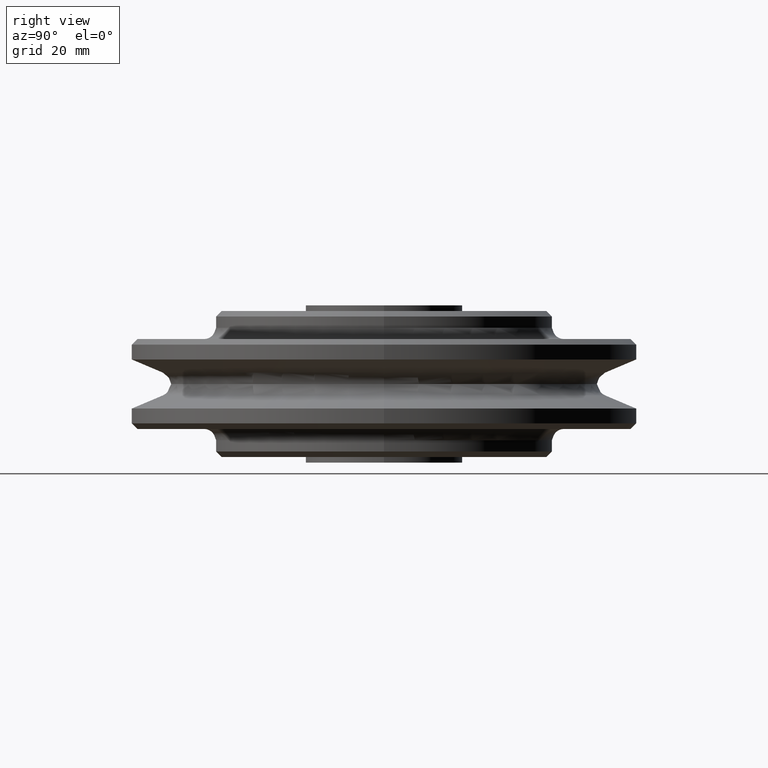
[diagram: clean part render]
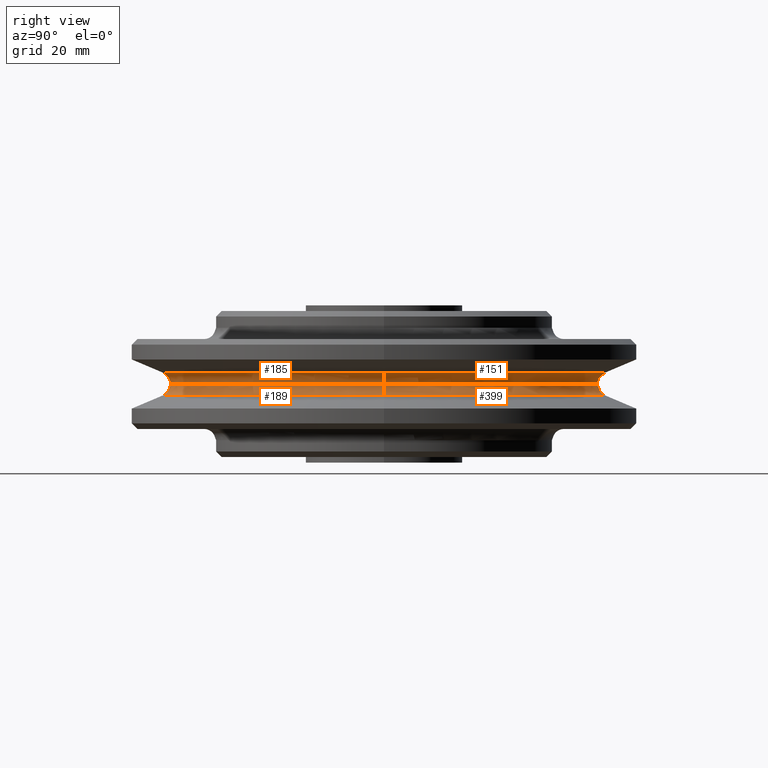
[diagram: same view with one multi-face feature highlighted, each face labeled with its STEP entity id]
A machine part, right view. The highlighted faces form ONE feature: a constant-radius fillet chain: 4 tangent blend faces with common blend radius 2.2 mm. The faces share edges in the B-rep.
Their STEP definitions:
[1] entity #189 (Torus):
#189=ADVANCED_FACE('',(#478),#479,.F.);
#478=FACE_OUTER_BOUND('',#888,.T.);
#479=TOROIDAL_SURFACE('',#889,40.2000003208,2.2000003208);
#888=EDGE_LOOP('',(#1387,#1388,#1389,#1390));
#889=AXIS2_PLACEMENT_3D('',#1391,#1392,#1393);
#1387=ORIENTED_EDGE('',*,*,#2649,.T.);
#1388=ORIENTED_EDGE('',*,*,#2656,.F.);
#1389=ORIENTED_EDGE('',*,*,#2657,.T.);
#1390=ORIENTED_EDGE('',*,*,#2658,.F.);
#1391=CARTESIAN_POINT('',(0.0,0.0,0.0));
#1392=DIRECTION('',(0.0,0.0,1.0));
#1393=DIRECTION('',(1.0,0.0,0.0));
#2649=EDGE_CURVE('',#3104,#3103,#3256,.T.);
#2656=EDGE_CURVE('',#3265,#3103,#3266,.T.);
#2657=EDGE_CURVE('',#3265,#3267,#3268,.T.);
#2658=EDGE_CURVE('',#3104,#3267,#3269,.T.);
#3103=VERTEX_POINT('',#3920);
#3104=VERTEX_POINT('',#3921);
#3256=CIRCLE('',#4905,38.0);
#3265=VERTEX_POINT('',#4916);
#3266=CIRCLE('',#4917,2.2000003208);
#3267=VERTEX_POINT('',#4918);
#3268=CIRCLE('',#4919,39.358096);
#3269=CIRCLE('',#4920,2.2000003208);
#3920=CARTESIAN_POINT('',(-38.0,3.96847459023068E-015,2.69422335099087E-016));
#3921=CARTESIAN_POINT('',(38.0,-3.96847459023068E-015,2.69422335099087E-016));
#4905=AXIS2_PLACEMENT_3D('',#8202,#8203,#8204);
#4916=CARTESIAN_POINT('',(-39.358096,4.81997662869342E-015,-2.032535));
#4917=AXIS2_PLACEMENT_3D('',#8213,#8214,#8215);
#4918=CARTESIAN_POINT('',(39.358096,0.0,-2.032535));
#4919=AXIS2_PLACEMENT_3D('',#8216,#8217,#8218);
#4920=AXIS2_PLACEMENT_3D('',#8219,#8220,#8221);
#8202=CARTESIAN_POINT('',(0.0,0.0,2.69422335099087E-016));
#8203=DIRECTION('',(-0.0,0.0,-1.0));
#8204=DIRECTION('',(-1.0,0.0,0.0));
#8213=CARTESIAN_POINT('',(-40.2000003208,4.92308017185903E-015,0.0));
#8214=DIRECTION('',(-1.22464679914735E-016,-1.0,0.0));
#8215=DIRECTION('',(-1.0,1.22464679914735E-016,-0.0));
#8216=CARTESIAN_POINT('',(0.0,0.0,-2.032535));
#8217=DIRECTION('',(0.0,0.0,1.0));
#8218=DIRECTION('',(1.0,0.0,0.0));
#8219=CARTESIAN_POINT('',(40.2000003208,-4.92308017185903E-015,0.0));
#8220=DIRECTION('',(-1.22464679914735E-016,-1.0,0.0));
#8221=DIRECTION('',(1.0,-1.22464679914735E-016,0.0));
[2] entity #185 (Torus):
#185=ADVANCED_FACE('',(#472),#473,.F.);
#472=FACE_OUTER_BOUND('',#882,.T.);
#473=TOROIDAL_SURFACE('',#883,40.2000003208,2.2000003208);
#882=EDGE_LOOP('',(#1371,#1372,#1373,#1374));
#883=AXIS2_PLACEMENT_3D('',#1375,#1376,#1377);
#1371=ORIENTED_EDGE('',*,*,#2649,.F.);
#1372=ORIENTED_EDGE('',*,*,#2567,.F.);
#1373=ORIENTED_EDGE('',*,*,#2650,.F.);
#1374=ORIENTED_EDGE('',*,*,#2565,.F.);
#1375=CARTESIAN_POINT('',(0.0,0.0,0.0));
#1376=DIRECTION('',(0.0,0.0,1.0));
#1377=DIRECTION('',(1.0,0.0,0.0));
#2565=EDGE_CURVE('',#3103,#3106,#3107,.T.);
#2567=EDGE_CURVE('',#3108,#3104,#3110,.T.);
#2649=EDGE_CURVE('',#3104,#3103,#3256,.T.);
#2650=EDGE_CURVE('',#3106,#3108,#3257,.T.);
#3103=VERTEX_POINT('',#3920);
#3104=VERTEX_POINT('',#3921);
#3106=VERTEX_POINT('',#3923);
#3107=CIRCLE('',#3924,2.2000003208);
#3108=VERTEX_POINT('',#3925);
#3110=CIRCLE('',#3927,2.2000003208);
#3256=CIRCLE('',#4905,38.0);
#3257=CIRCLE('',#4906,39.358096);
#3920=CARTESIAN_POINT('',(-38.0,3.96847459023068E-015,2.69422335099087E-016));
#3921=CARTESIAN_POINT('',(38.0,-3.96847459023068E-015,2.69422335099087E-016));
#3923=CARTESIAN_POINT('',(-39.358096,4.81997662869342E-015,2.032535));
#3924=AXIS2_PLACEMENT_3D('',#8097,#8098,#8099);
#3925=CARTESIAN_POINT('',(39.358096,0.0,2.032535));
#3927=AXIS2_PLACEMENT_3D('',#8103,#8104,#8105);
#4905=AXIS2_PLACEMENT_3D('',#8202,#8203,#8204);
#4906=AXIS2_PLACEMENT_3D('',#8205,#8206,#8207);
#8097=CARTESIAN_POINT('',(-40.2000003208,4.92308017185903E-015,0.0));
#8098=DIRECTION('',(-1.22464679914735E-016,-1.0,0.0));
#8099=DIRECTION('',(-1.0,1.22464679914735E-016,-0.0));
#8103=CARTESIAN_POINT('',(40.2000003208,-4.92308017185903E-015,0.0));
#8104=DIRECTION('',(-1.22464679914735E-016,-1.0,0.0));
#8105=DIRECTION('',(1.0,-1.22464679914735E-016,0.0));
#8202=CARTESIAN_POINT('',(0.0,0.0,2.69422335099087E-016));
#8203=DIRECTION('',(-0.0,0.0,-1.0));
#8204=DIRECTION('',(-1.0,0.0,0.0));
#8205=CARTESIAN_POINT('',(0.0,0.0,2.032535));
#8206=DIRECTION('',(0.0,0.0,1.0));
#8207=DIRECTION('',(1.0,0.0,0.0));
[3] entity #151 (Torus):
#151=ADVANCED_FACE('',(#421),#422,.F.);
#421=FACE_OUTER_BOUND('',#831,.T.);
#422=TOROIDAL_SURFACE('',#832,40.2000003208,2.2000003208);
#831=EDGE_LOOP('',(#1235,#1236,#1237,#1238));
#832=AXIS2_PLACEMENT_3D('',#1239,#1240,#1241);
#1235=ORIENTED_EDGE('',*,*,#2564,.F.);
#1236=ORIENTED_EDGE('',*,*,#2565,.T.);
#1237=ORIENTED_EDGE('',*,*,#2566,.F.);
#1238=ORIENTED_EDGE('',*,*,#2567,.T.);
#1239=CARTESIAN_POINT('',(0.0,0.0,0.0));
#1240=DIRECTION('',(0.0,0.0,1.0));
#1241=DIRECTION('',(1.0,0.0,0.0));
#2564=EDGE_CURVE('',#3103,#3104,#3105,.T.);
#2565=EDGE_CURVE('',#3103,#3106,#3107,.T.);
#2566=EDGE_CURVE('',#3108,#3106,#3109,.T.);
#2567=EDGE_CURVE('',#3108,#3104,#3110,.T.);
#3103=VERTEX_POINT('',#3920);
#3104=VERTEX_POINT('',#3921);
#3105=CIRCLE('',#3922,38.0);
#3106=VERTEX_POINT('',#3923);
#3107=CIRCLE('',#3924,2.2000003208);
#3108=VERTEX_POINT('',#3925);
#3109=CIRCLE('',#3926,39.358096);
#3110=CIRCLE('',#3927,2.2000003208);
#3920=CARTESIAN_POINT('',(-38.0,3.96847459023068E-015,2.69422335099087E-016));
#3921=CARTESIAN_POINT('',(38.0,-3.96847459023068E-015,2.69422335099087E-016));
#3922=AXIS2_PLACEMENT_3D('',#8094,#8095,#8096);
#3923=CARTESIAN_POINT('',(-39.358096,4.81997662869342E-015,2.032535));
#3924=AXIS2_PLACEMENT_3D('',#8097,#8098,#8099);
#3925=CARTESIAN_POINT('',(39.358096,0.0,2.032535));
#3926=AXIS2_PLACEMENT_3D('',#8100,#8101,#8102);
#3927=AXIS2_PLACEMENT_3D('',#8103,#8104,#8105);
#8094=CARTESIAN_POINT('',(0.0,0.0,2.69422335099087E-016));
#8095=DIRECTION('',(-0.0,0.0,-1.0));
#8096=DIRECTION('',(-1.0,0.0,0.0));
#8097=CARTESIAN_POINT('',(-40.2000003208,4.92308017185903E-015,0.0));
#8098=DIRECTION('',(-1.22464679914735E-016,-1.0,0.0));
#8099=DIRECTION('',(-1.0,1.22464679914735E-016,-0.0));
#8100=CARTESIAN_POINT('',(0.0,0.0,2.032535));
#8101=DIRECTION('',(0.0,0.0,1.0));
#8102=DIRECTION('',(1.0,0.0,0.0));
#8103=CARTESIAN_POINT('',(40.2000003208,-4.92308017185903E-015,0.0));
#8104=DIRECTION('',(-1.22464679914735E-016,-1.0,0.0));
#8105=DIRECTION('',(1.0,-1.22464679914735E-016,0.0));
[4] entity #399 (Torus):
#399=ADVANCED_FACE('',(#817),#818,.F.);
#817=FACE_OUTER_BOUND('',#1227,.T.);
#818=TOROIDAL_SURFACE('',#1228,40.2000003208,2.2000003208);
#1227=EDGE_LOOP('',(#2547,#2548,#2549,#2550));
#1228=AXIS2_PLACEMENT_3D('',#2551,#2552,#2553);
#2547=ORIENTED_EDGE('',*,*,#2564,.T.);
#2548=ORIENTED_EDGE('',*,*,#2658,.T.);
#2549=ORIENTED_EDGE('',*,*,#2663,.T.);
#2550=ORIENTED_EDGE('',*,*,#2656,.T.);
#2551=CARTESIAN_POINT('',(0.0,0.0,0.0));
#2552=DIRECTION('',(0.0,0.0,1.0));
#2553=DIRECTION('',(1.0,0.0,0.0));
#2564=EDGE_CURVE('',#3103,#3104,#3105,.T.);
#2656=EDGE_CURVE('',#3265,#3103,#3266,.T.);
#2658=EDGE_CURVE('',#3104,#3267,#3269,.T.);
#2663=EDGE_CURVE('',#3267,#3265,#3276,.T.);
#3103=VERTEX_POINT('',#3920);
#3104=VERTEX_POINT('',#3921);
#3105=CIRCLE('',#3922,38.0);
#3265=VERTEX_POINT('',#4916);
#3266=CIRCLE('',#4917,2.2000003208);
#3267=VERTEX_POINT('',#4918);
#3269=CIRCLE('',#4920,2.2000003208);
#3276=CIRCLE('',#4929,39.358096);
#3920=CARTESIAN_POINT('',(-38.0,3.96847459023068E-015,2.69422335099087E-016));
#3921=CARTESIAN_POINT('',(38.0,-3.96847459023068E-015,2.69422335099087E-016));
#3922=AXIS2_PLACEMENT_3D('',#8094,#8095,#8096);
#4916=CARTESIAN_POINT('',(-39.358096,4.81997662869342E-015,-2.032535));
#4917=AXIS2_PLACEMENT_3D('',#8213,#8214,#8215);
#4918=CARTESIAN_POINT('',(39.358096,0.0,-2.032535));
#4920=AXIS2_PLACEMENT_3D('',#8219,#8220,#8221);
#4929=AXIS2_PLACEMENT_3D('',#8227,#8228,#8229);
#8094=CARTESIAN_POINT('',(0.0,0.0,2.69422335099087E-016));
#8095=DIRECTION('',(-0.0,0.0,-1.0));
#8096=DIRECTION('',(-1.0,0.0,0.0));
#8213=CARTESIAN_POINT('',(-40.2000003208,4.92308017185903E-015,0.0));
#8214=DIRECTION('',(-1.22464679914735E-016,-1.0,0.0));
#8215=DIRECTION('',(-1.0,1.22464679914735E-016,-0.0));
#8219=CARTESIAN_POINT('',(40.2000003208,-4.92308017185903E-015,0.0));
#8220=DIRECTION('',(-1.22464679914735E-016,-1.0,0.0));
#8221=DIRECTION('',(1.0,-1.22464679914735E-016,0.0));
#8227=CARTESIAN_POINT('',(0.0,0.0,-2.032535));
#8228=DIRECTION('',(0.0,0.0,1.0));
#8229=DIRECTION('',(1.0,0.0,0.0));